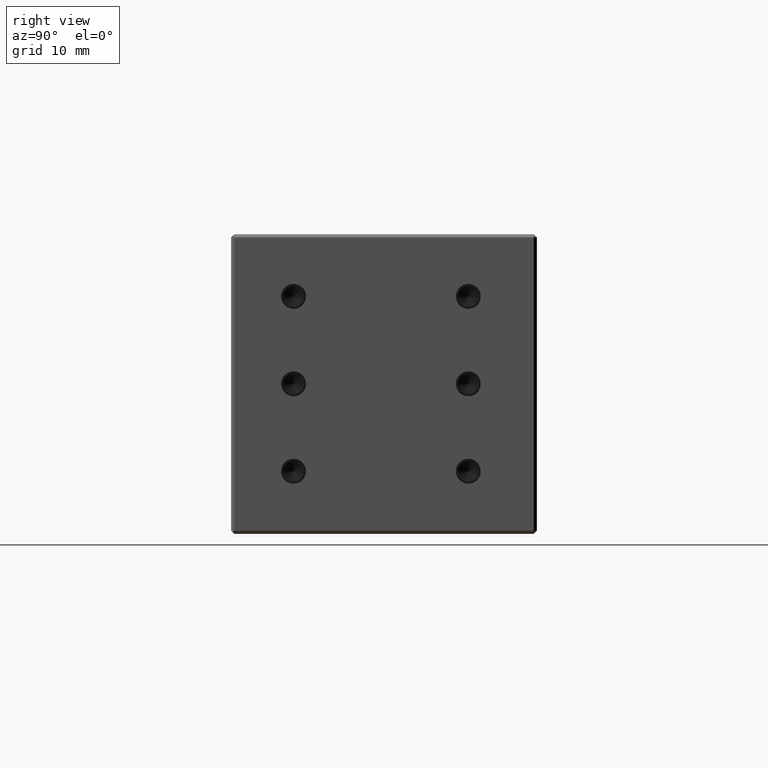
[diagram: clean part render]
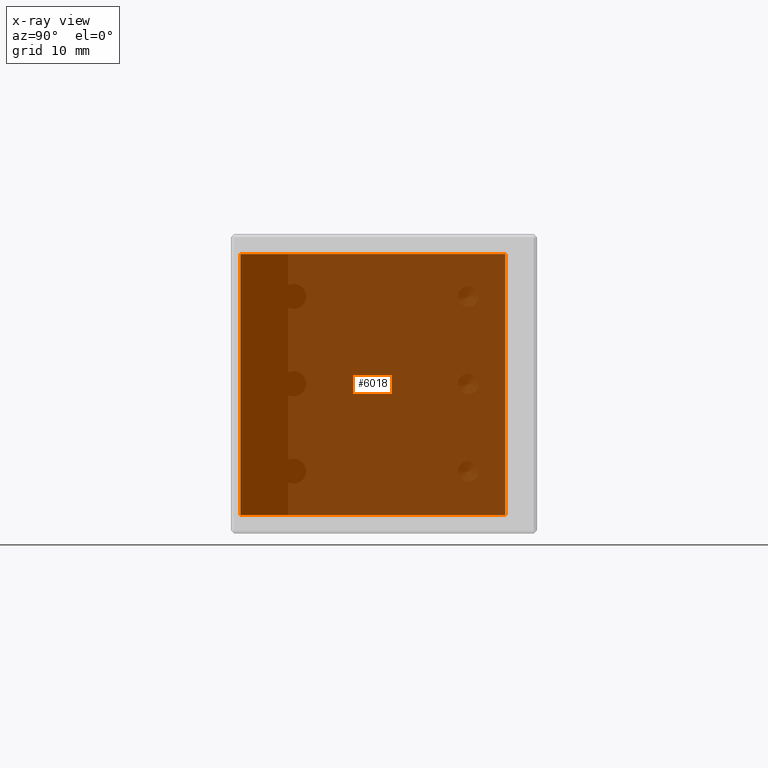
[diagram: x-ray — body ghosted, one internal face saturated and labeled with its STEP entity id]
A machine part, right view, then the same camera in x-ray: the body is ghosted and one INTERNAL B-rep face — a face not visible from any outside direction — is saturated and labeled: STEP entity #6018.
In plain terms, the highlighted planar face has unit normal (-0.7071, -0.7071, 0).
Its self-contained STEP definition (entity closure, byte-faithful):
#305 = EDGE_LOOP ( 'NONE', ( #2626, #11085, #21605, #10836 ) ) ;
#649 = VERTEX_POINT ( 'NONE', #3239 ) ;
#1474 = CARTESIAN_POINT ( 'NONE',  ( 8.745894682920001300, 14.46055126761199700, -37.00000000000009900 ) ) ;
#1489 = VERTEX_POINT ( 'NONE', #20676 ) ;
#2176 = AXIS2_PLACEMENT_3D ( 'NONE', #24210, #10773, #26461 ) ;
#2566 = LINE ( 'NONE', #4409, #13836 ) ;
#2626 = ORIENTED_EDGE ( 'NONE', *, *, #9482, .F. ) ;
#3239 = CARTESIAN_POINT ( 'NONE',  ( -12.46730875267449100, 35.67375470320976700, -37.00000000000005000 ) ) ;
#3788 = FACE_OUTER_BOUND ( 'NONE', #305, .T. ) ;
#3828 = CARTESIAN_POINT ( 'NONE',  ( 8.745894682920001300, 14.46055126761199700, 4.799999999995089100 ) ) ;
#3918 = EDGE_CURVE ( 'NONE', #6254, #19236, #14363, .T. ) ;
#4409 = CARTESIAN_POINT ( 'NONE',  ( -12.46730875267649600, 35.67375470321351100, -16.10000000000250600 ) ) ;
#6018 = ADVANCED_FACE ( 'NONE', ( #3788 ), #8413, .F. ) ;
#6254 = VERTEX_POINT ( 'NONE', #15892 ) ;
#6660 = DIRECTION ( 'NONE',  ( 0.0000000000000000000, 0.0000000000000000000, 1.000000000000000000 ) ) ;
#8413 = PLANE ( 'NONE',  #2176 ) ;
#9482 = EDGE_CURVE ( 'NONE', #1489, #6254, #11057, .T. ) ;
#10773 = DIRECTION ( 'NONE',  ( -0.7071067811865154900, -0.7071067811865796600, 0.0000000000000000000 ) ) ;
#10836 = ORIENTED_EDGE ( 'NONE', *, *, #3918, .F. ) ;
#11054 = CARTESIAN_POINT ( 'NONE',  ( 29.95909811851615200, -6.752652167982228400, -16.10000000000250600 ) ) ;
#11057 = LINE ( 'NONE', #11054, #23709 ) ;
#11085 = ORIENTED_EDGE ( 'NONE', *, *, #21512, .F. ) ;
#11300 = LINE ( 'NONE', #1474, #27847 ) ;
#13836 = VECTOR ( 'NONE', #6660, 1000.000000000000000 ) ;
#14363 = LINE ( 'NONE', #3828, #19627 ) ;
#15140 = DIRECTION ( 'NONE',  ( 0.7071067811865796600, -0.7071067811865153800, 0.0000000000000000000 ) ) ;
#15892 = CARTESIAN_POINT ( 'NONE',  ( 29.95909811851604600, -6.752652167982363500, 4.799999999995066900 ) ) ;
#19236 = VERTEX_POINT ( 'NONE', #21474 ) ;
#19524 = DIRECTION ( 'NONE',  ( -0.7071067811865796600, 0.7071067811865153800, -0.0000000000000000000 ) ) ;
#19627 = VECTOR ( 'NONE', #19524, 1000.000000000000000 ) ;
#20676 = CARTESIAN_POINT ( 'NONE',  ( 29.95909811851741400, -6.752652167982405200, -37.00000000000005000 ) ) ;
#21474 = CARTESIAN_POINT ( 'NONE',  ( -12.46730875267449300, 35.67375470320976700, 4.799999999995044700 ) ) ;
#21512 = EDGE_CURVE ( 'NONE', #649, #1489, #11300, .T. ) ;
#21605 = ORIENTED_EDGE ( 'NONE', *, *, #25593, .T. ) ;
#23709 = VECTOR ( 'NONE', #24515, 1000.000000000000000 ) ;
#24210 = CARTESIAN_POINT ( 'NONE',  ( -13.31583689009999800, 36.52228284062999100, -37.83600000000000600 ) ) ;
#24515 = DIRECTION ( 'NONE',  ( 0.0000000000000000000, 0.0000000000000000000, 1.000000000000000000 ) ) ;
#25593 = EDGE_CURVE ( 'NONE', #649, #19236, #2566, .T. ) ;
#26461 = DIRECTION ( 'NONE',  ( 0.7071067811865795500, -0.7071067811865153800, 0.0000000000000000000 ) ) ;
#27847 = VECTOR ( 'NONE', #15140, 1000.000000000000000 ) ;